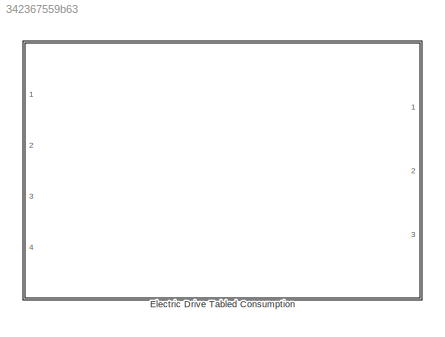
MODEL slx_342367559b63
KIND library
CONFIG AbsTol = auto
CONFIG EnableMultiTasking = off
CONFIG FixedStep = auto
CONFIG MaxStep = auto
CONFIG MinStep = auto
CONFIG RelTol = 1e-3
CONFIG SampleTimeConstraint = Unconstrained
CONFIG Solver = VariableStepAuto
CONFIG SolverName = VariableStepAuto
CONFIG StartTime = 0.0
CONFIG StopTime = 10.0
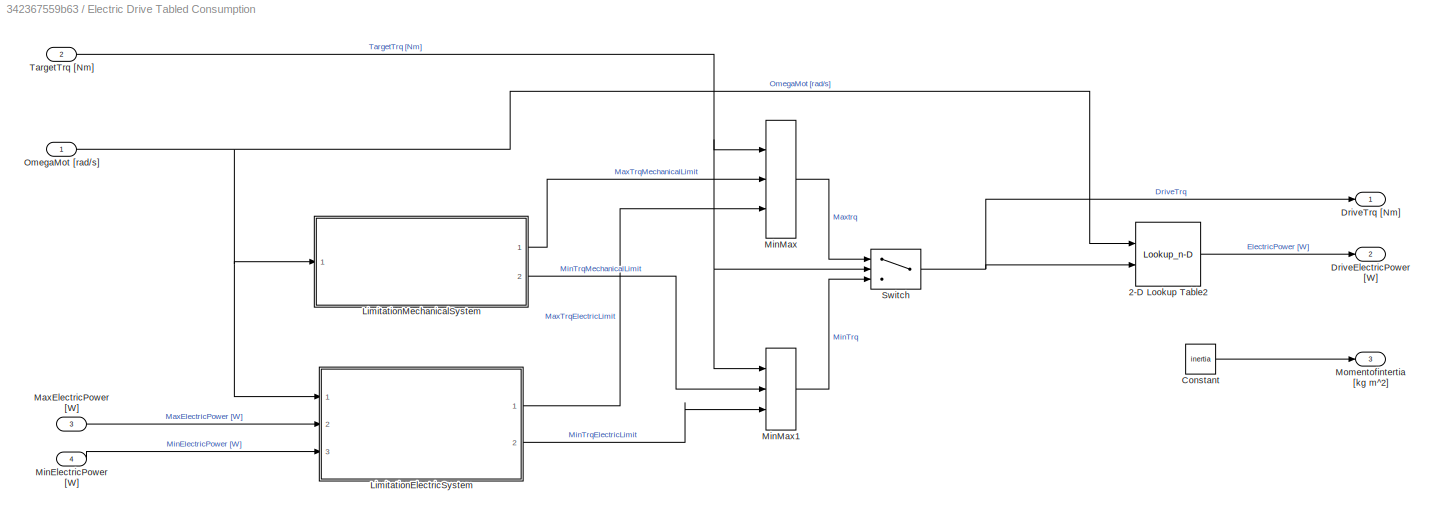
BLOCK [SubSystem] Electric Drive Tabled Consumption
  Ports = [4, 3]
  RequestExecContextInheritance = off
BLOCK [Lookup_n-D] Electric Drive Tabled Consumption/2-D Lookup Table2
  BreakpointsForDimension1 = OM_MotVector
  BreakpointsForDimension2 = M_MotVector
  InternalRulePriority = Speed
  Ports = [2, 1]
  RndMeth = Simplest
  Table = OM_M_Pel_Map
  UseLastTableValue = on
BLOCK [Constant] Electric Drive Tabled Consumption/Constant
  Value = inertia
BLOCK [Outport] Electric Drive Tabled Consumption/DriveElectricPower [W]
  IconDisplay = Port number
  Port = 2
  SampleTime = GlobalSampleTime
BLOCK [Outport] Electric Drive Tabled Consumption/DriveTrq [Nm]
  IconDisplay = Port number
  SampleTime = GlobalSampleTime
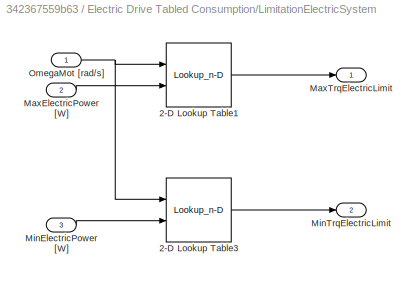
BLOCK [SubSystem] Electric Drive Tabled Consumption/LimitationElectricSystem
  Ports = [3, 2]
  RequestExecContextInheritance = off
BLOCK [Lookup_n-D] Electric Drive Tabled Consumption/LimitationElectricSystem/2-D Lookup Table1
  BreakpointsForDimension1 = OM_MotVector
  BreakpointsForDimension2 = PEl_MotVector
  InternalRulePriority = Speed
  Ports = [2, 1]
  RndMeth = Simplest
  Table = OM_PEl_M_Map
  UseLastTableValue = on
BLOCK [Lookup_n-D] Electric Drive Tabled Consumption/LimitationElectricSystem/2-D Lookup Table3
  BreakpointsForDimension1 = OM_MotVector
  BreakpointsForDimension2 = PEl_MotVector
  InternalRulePriority = Speed
  Ports = [2, 1]
  RndMeth = Simplest
  Table = OM_PEl_M_Map
  UseLastTableValue = on
BLOCK [Inport] Electric Drive Tabled Consumption/LimitationElectricSystem/MaxElectricPower [W]
  IconDisplay = Port number
  Port = 2
BLOCK [Outport] Electric Drive Tabled Consumption/LimitationElectricSystem/MaxTrqElectricLimit
  IconDisplay = Port number
BLOCK [Inport] Electric Drive Tabled Consumption/LimitationElectricSystem/MinElectricPower [W]
  IconDisplay = Port number
  Port = 3
BLOCK [Outport] Electric Drive Tabled Consumption/LimitationElectricSystem/MinTrqElectricLimit
  IconDisplay = Port number
  Port = 2
BLOCK [Inport] Electric Drive Tabled Consumption/LimitationElectricSystem/OmegaMot [rad//s]
  IconDisplay = Port number
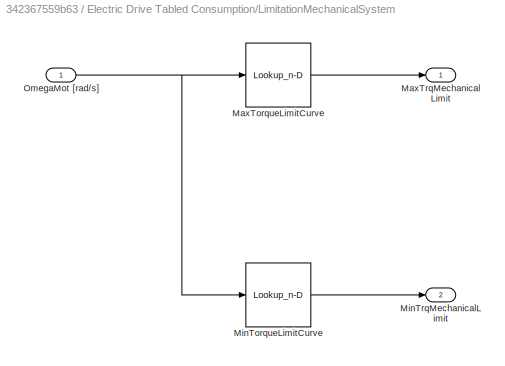
BLOCK [SubSystem] Electric Drive Tabled Consumption/LimitationMechanicalSystem
  Ports = [1, 2]
  RequestExecContextInheritance = off
BLOCK [Lookup_n-D] Electric Drive Tabled Consumption/LimitationMechanicalSystem/MaxTorqueLimitCurve
  BreakpointsForDimension1 = OM_Full_Load
  InternalRulePriority = Speed
  NumberOfTableDimensions = 1
  Ports = [1, 1]
  RndMeth = Simplest
  Table = M_Full_Load
BLOCK [Outport] Electric Drive Tabled Consumption/LimitationMechanicalSystem/MaxTrqMechanicalLimit
  IconDisplay = Port number
BLOCK [Lookup_n-D] Electric Drive Tabled Consumption/LimitationMechanicalSystem/MinTorqueLimitCurve
  BreakpointsForDimension1 = OM_Min_Load
  InternalRulePriority = Speed
  NumberOfTableDimensions = 1
  Ports = [1, 1]
  RndMeth = Simplest
  Table = M_Min_Load
BLOCK [Outport] Electric Drive Tabled Consumption/LimitationMechanicalSystem/MinTrqMechanicalLimit
  IconDisplay = Port number
  Port = 2
BLOCK [Inport] Electric Drive Tabled Consumption/LimitationMechanicalSystem/OmegaMot [rad//s]
  IconDisplay = Port number
BLOCK [Inport] Electric Drive Tabled Consumption/MaxElectricPower [W]
  IconDisplay = Port number
  Port = 3
  SampleTime = LocalSampleTime
BLOCK [Inport] Electric Drive Tabled Consumption/MinElectricPower [W]
  IconDisplay = Port number
  Port = 4
  SampleTime = LocalSampleTime
BLOCK [MinMax] Electric Drive Tabled Consumption/MinMax
  InputSameDT = off
  Inputs = 3
  Ports = [3, 1]
  SaturateOnIntegerOverflow = off
BLOCK [MinMax] Electric Drive Tabled Consumption/MinMax1
  Function = max
  InputSameDT = off
  Inputs = 3
  Ports = [3, 1]
  SaturateOnIntegerOverflow = off
BLOCK [Outport] Electric Drive Tabled Consumption/Momentofintertia [kg m^2]
  IconDisplay = Port number
  Port = 3
  SampleTime = GlobalSampleTime
BLOCK [Inport] Electric Drive Tabled Consumption/OmegaMot [rad//s]
  IconDisplay = Port number
  SampleTime = LocalSampleTime
BLOCK [Switch] Electric Drive Tabled Consumption/Switch
  InputSameDT = off
  SaturateOnIntegerOverflow = off
BLOCK [Inport] Electric Drive Tabled Consumption/TargetTrq [Nm]
  IconDisplay = Port number
  Port = 2
  SampleTime = LocalSampleTime
LINE Electric Drive Tabled Consumption/2-D Lookup Table2:1 -> Electric Drive Tabled Consumption/DriveElectricPower [W]:1
LINE Electric Drive Tabled Consumption/Constant:1 -> Electric Drive Tabled Consumption/Momentofintertia [kg m^2]:1
LINE Electric Drive Tabled Consumption/LimitationElectricSystem/2-D Lookup Table1:1 -> Electric Drive Tabled Consumption/LimitationElectricSystem/MaxTrqElectricLimit:1
LINE Electric Drive Tabled Consumption/LimitationElectricSystem/2-D Lookup Table3:1 -> Electric Drive Tabled Consumption/LimitationElectricSystem/MinTrqElectricLimit:1
LINE Electric Drive Tabled Consumption/LimitationElectricSystem/MaxElectricPower [W]:1 -> Electric Drive Tabled Consumption/LimitationElectricSystem/2-D Lookup Table1:2
LINE Electric Drive Tabled Consumption/LimitationElectricSystem/MinElectricPower [W]:1 -> Electric Drive Tabled Consumption/LimitationElectricSystem/2-D Lookup Table3:2
NET Electric Drive Tabled Consumption/LimitationElectricSystem/OmegaMot [rad//s]:1 -> Electric Drive Tabled Consumption/LimitationElectricSystem/2-D Lookup Table1:1, Electric Drive Tabled Consumption/LimitationElectricSystem/2-D Lookup Table3:1
LINE Electric Drive Tabled Consumption/LimitationElectricSystem:1 -> Electric Drive Tabled Consumption/MinMax:3
LINE Electric Drive Tabled Consumption/LimitationElectricSystem:2 -> Electric Drive Tabled Consumption/MinMax1:3
LINE Electric Drive Tabled Consumption/LimitationMechanicalSystem/MaxTorqueLimitCurve:1 -> Electric Drive Tabled Consumption/LimitationMechanicalSystem/MaxTrqMechanicalLimit:1
LINE Electric Drive Tabled Consumption/LimitationMechanicalSystem/MinTorqueLimitCurve:1 -> Electric Drive Tabled Consumption/LimitationMechanicalSystem/MinTrqMechanicalLimit:1
NET Electric Drive Tabled Consumption/LimitationMechanicalSystem/OmegaMot [rad//s]:1 -> Electric Drive Tabled Consumption/LimitationMechanicalSystem/MaxTorqueLimitCurve:1, Electric Drive Tabled Consumption/LimitationMechanicalSystem/MinTorqueLimitCurve:1
LINE Electric Drive Tabled Consumption/LimitationMechanicalSystem:1 -> Electric Drive Tabled Consumption/MinMax:2
LINE Electric Drive Tabled Consumption/LimitationMechanicalSystem:2 -> Electric Drive Tabled Consumption/MinMax1:2
LINE Electric Drive Tabled Consumption/MaxElectricPower [W]:1 -> Electric Drive Tabled Consumption/LimitationElectricSystem:2
LINE Electric Drive Tabled Consumption/MinElectricPower [W]:1 -> Electric Drive Tabled Consumption/LimitationElectricSystem:3
LINE Electric Drive Tabled Consumption/MinMax1:1 -> Electric Drive Tabled Consumption/Switch:3
LINE Electric Drive Tabled Consumption/MinMax:1 -> Electric Drive Tabled Consumption/Switch:1
NET Electric Drive Tabled Consumption/OmegaMot [rad//s]:1 -> Electric Drive Tabled Consumption/2-D Lookup Table2:1, Electric Drive Tabled Consumption/LimitationElectricSystem:1, Electric Drive Tabled Consumption/LimitationMechanicalSystem:1
NET Electric Drive Tabled Consumption/Switch:1 -> Electric Drive Tabled Consumption/2-D Lookup Table2:2, Electric Drive Tabled Consumption/DriveTrq [Nm]:1
NET Electric Drive Tabled Consumption/TargetTrq [Nm]:1 -> Electric Drive Tabled Consumption/MinMax1:1, Electric Drive Tabled Consumption/MinMax:1, Electric Drive Tabled Consumption/Switch:2
note: NET lines group one-source signal fan-out (src -> all destinations, sorted); 1:1 wires keep LINE
